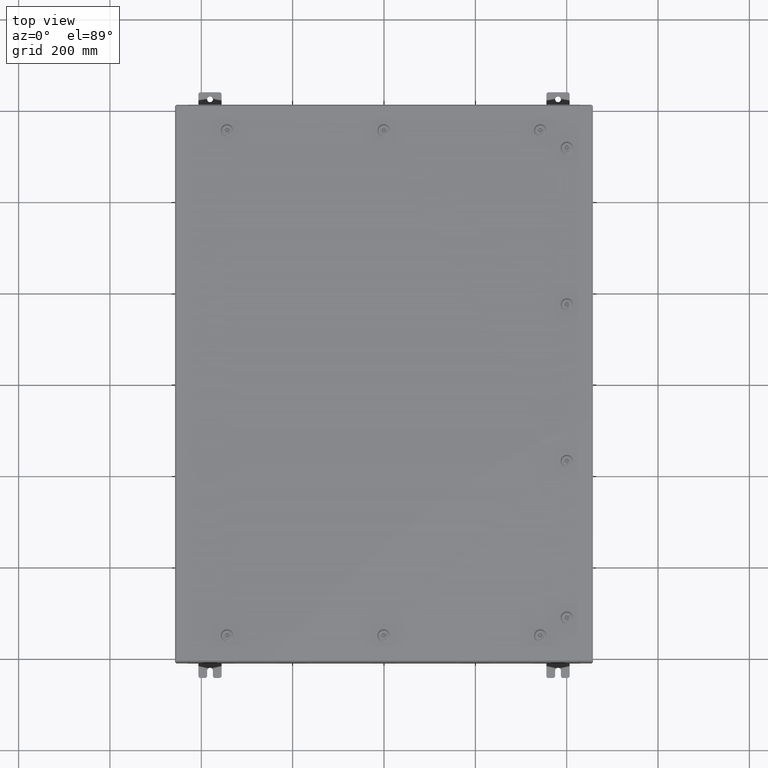
[diagram: clean part render]
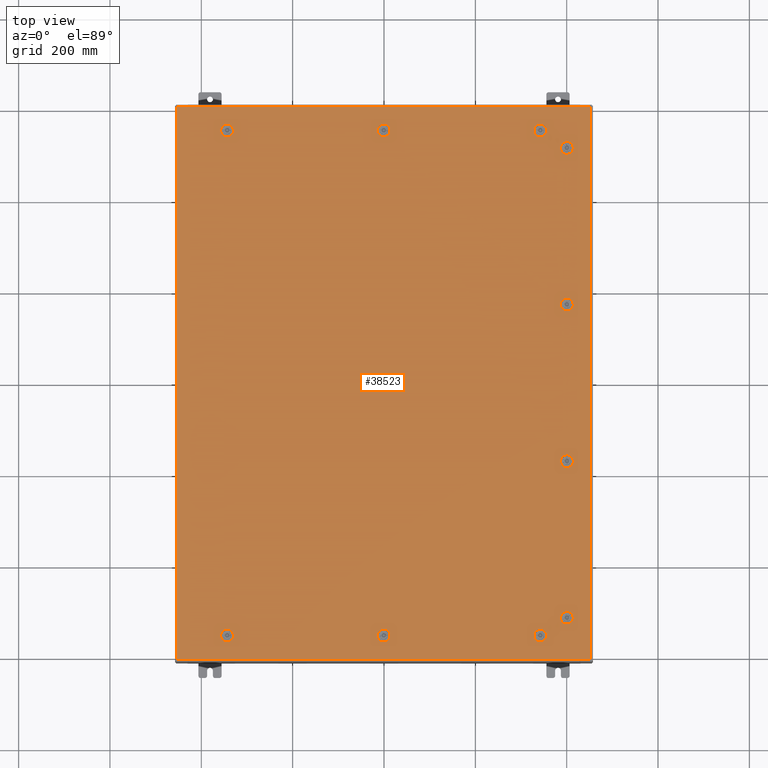
[diagram: same view with one face highlighted and labeled with its STEP entity id]
A machine part, top view. The second image highlights one B-rep face of the part: STEP entity #38523.
In plain terms, the highlighted planar face has unit normal (0, 0, -1).
Its self-contained STEP definition (entity closure, byte-faithful):
#11 = CIRCLE ( 'NONE', #58830, 0.4424999999999983400 ) ;
#49 = VERTEX_POINT ( 'NONE', #47162 ) ;
#89 = PLANE ( 'NONE',  #27670 ) ;
#187 = ORIENTED_EDGE ( 'NONE', *, *, #14900, .F. ) ;
#302 = CARTESIAN_POINT ( 'NONE',  ( -13.49999999999998600, 21.78780000000000400, 0.0000000000000000000 ) ) ;
#665 = DIRECTION ( 'NONE',  ( 0.0000000000000000000, 1.000000000000000000, 6.982962677686235200E-015 ) ) ;
#861 = CARTESIAN_POINT ( 'NONE',  ( 15.78780000000000800, -6.750000000000014200, -4.713499807438240100E-014 ) ) ;
#1033 = EDGE_CURVE ( 'NONE', #21482, #36262, #64863, .T. ) ;
#1095 = CARTESIAN_POINT ( 'NONE',  ( 13.30054762473210200, 21.39280000000001200, -9.287722765629301200E-014 ) ) ;
#1135 = CARTESIAN_POINT ( 'NONE',  ( 0.1994523752678995500, 21.39280000000001200, 0.0000000000000000000 ) ) ;
#1137 = VERTEX_POINT ( 'NONE', #1135 ) ;
#1224 = DIRECTION ( 'NONE',  ( 5.478697338139280000E-015, 1.000000000000000000, 6.982962677686382700E-015 ) ) ;
#1502 = CIRCLE ( 'NONE', #64398, 0.4424999999999983400 ) ;
#1539 = CARTESIAN_POINT ( 'NONE',  ( 13.49999999999998600, -21.78780000000000400, -1.578617423656501800E-013 ) ) ;
#1879 = DIRECTION ( 'NONE',  ( 1.000000000000000000, 0.0000000000000000000, 6.982962677686270700E-015 ) ) ;
#1955 = EDGE_CURVE ( 'NONE', #61809, #66351, #43257, .T. ) ;
#2132 = CARTESIAN_POINT ( 'NONE',  ( 13.30054762473210400, -21.39280000000001200, -1.564962406004356200E-013 ) ) ;
#2148 = CARTESIAN_POINT ( 'NONE',  ( -0.1994523752678689600, -21.39280000000001200, -2.493734682567286400E-013 ) ) ;
#2157 = CARTESIAN_POINT ( 'NONE',  ( 15.78780000000000800, -6.750000000000014200, -4.713499807438240100E-014 ) ) ;
#2193 = AXIS2_PLACEMENT_3D ( 'NONE', #45282, #13455, #50586 ) ;
#2249 = EDGE_CURVE ( 'NONE', #9610, #49, #53988, .T. ) ;
#2329 = AXIS2_PLACEMENT_3D ( 'NONE', #8995, #46147, #14343 ) ;
#2722 = FACE_BOUND ( 'NONE', #63793, .T. ) ;
#2828 = LINE ( 'NONE', #53700, #57630 ) ;
#3023 = EDGE_CURVE ( 'NONE', #37370, #46178, #58907, .T. ) ;
#3158 = ORIENTED_EDGE ( 'NONE', *, *, #11163, .F. ) ;
#3176 = DIRECTION ( 'NONE',  ( -0.0000000000000000000, -6.982962677686266700E-015, 1.000000000000000000 ) ) ;
#3534 = DIRECTION ( 'NONE',  ( -1.000000000000000000, -0.0000000000000000000, -6.982962677686265900E-015 ) ) ;
#3633 = LINE ( 'NONE', #44708, #5295 ) ;
#3727 = DIRECTION ( 'NONE',  ( 1.000000000000000000, 0.0000000000000000000, 0.0000000000000000000 ) ) ;
#3857 = EDGE_LOOP ( 'NONE', ( #64049, #27577, #66036, #4003, #57104 ) ) ;
#3958 = CARTESIAN_POINT ( 'NONE',  ( 15.78780000000001000, 6.750000000000014200, 0.0000000000000000000 ) ) ;
#4003 = ORIENTED_EDGE ( 'NONE', *, *, #33850, .F. ) ;
#4222 = EDGE_CURVE ( 'NONE', #45444, #48048, #1502, .T. ) ;
#4319 = ORIENTED_EDGE ( 'NONE', *, *, #20498, .F. ) ;
#4787 = CIRCLE ( 'NONE', #5316, 0.4424999999999983400 ) ;
#5191 = VECTOR ( 'NONE', #53969, 39.37007874015748100 ) ;
#5295 = VECTOR ( 'NONE', #12855, 39.37007874015748100 ) ;
#5316 = AXIS2_PLACEMENT_3D ( 'NONE', #35057, #3176, #40367 ) ;
#5519 = EDGE_CURVE ( 'NONE', #17537, #9610, #6514, .T. ) ;
#5606 = CARTESIAN_POINT ( 'NONE',  ( 1.529834876451987200E-014, -21.78780000000000400, -2.521317385144146900E-013 ) ) ;
#5649 = DIRECTION ( 'NONE',  ( 1.000000000000000000, 0.0000000000000000000, 0.0000000000000000000 ) ) ;
#5767 = EDGE_CURVE ( 'NONE', #16783, #37744, #40616, .T. ) ;
#5846 = EDGE_CURVE ( 'NONE', #19422, #50183, #54657, .T. ) ;
#5855 = CARTESIAN_POINT ( 'NONE',  ( -13.30054762473209500, -22.18280000000000400, -2.548900087721007400E-013 ) ) ;
#6047 = AXIS2_PLACEMENT_3D ( 'NONE', #48284, #16501, #53594 ) ;
#6206 = DIRECTION ( 'NONE',  ( 0.0000000000000000000, 1.000000000000000000, 6.982962677686269100E-015 ) ) ;
#6271 = VERTEX_POINT ( 'NONE', #24868 ) ;
#6487 = CARTESIAN_POINT ( 'NONE',  ( -13.49999999999998600, -21.78780000000000800, -2.521317385144146900E-013 ) ) ;
#6489 = CARTESIAN_POINT ( 'NONE',  ( -13.69945237526786900, -22.18280000000000700, 0.0000000000000000000 ) ) ;
#6514 = CIRCLE ( 'NONE', #60431, 0.4424999999999961700 ) ;
#6715 = EDGE_CURVE ( 'NONE', #6271, #61809, #4787, .T. ) ;
#6805 = CARTESIAN_POINT ( 'NONE',  ( 15.39280000000002800, -20.44945237526790300, -1.427977627156185600E-013 ) ) ;
#6883 = DIRECTION ( 'NONE',  ( 1.000000000000000000, 0.0000000000000000000, 6.982962677686270700E-015 ) ) ;
#6937 = CARTESIAN_POINT ( 'NONE',  ( -13.30054762473210400, -21.39280000000001500, -2.493734682567286900E-013 ) ) ;
#7275 = LINE ( 'NONE', #38708, #47986 ) ;
#7516 = DIRECTION ( 'NONE',  ( 0.0000000000000000000, 1.000000000000000000, 6.982962677686252500E-015 ) ) ;
#7695 = CIRCLE ( 'NONE', #43469, 0.4424999999999983400 ) ;
#7986 = ORIENTED_EDGE ( 'NONE', *, *, #49382, .F. ) ;
#8154 = LINE ( 'NONE', #33094, #66318 ) ;
#8384 = EDGE_CURVE ( 'NONE', #51489, #62645, #9665, .T. ) ;
#8458 = CARTESIAN_POINT ( 'NONE',  ( 15.39280000000001500, -6.949452375267905600, -4.852776656685395900E-014 ) ) ;
#8495 = CARTESIAN_POINT ( 'NONE',  ( 1.529834876451987200E-014, 21.78780000000000400, 0.0000000000000000000 ) ) ;
#8995 = CARTESIAN_POINT ( 'NONE',  ( 1.529834876451987200E-014, -21.78780000000000400, -2.521317385144146900E-013 ) ) ;
#9168 = DIRECTION ( 'NONE',  ( 0.0000000000000000000, 0.0000000000000000000, 1.000000000000000000 ) ) ;
#9311 = DIRECTION ( 'NONE',  ( 1.000000000000000000, 0.0000000000000000000, 0.0000000000000000000 ) ) ;
#9508 = EDGE_CURVE ( 'NONE', #24290, #29080, #29582, .T. ) ;
#9610 = VERTEX_POINT ( 'NONE', #48239 ) ;
#9662 = VERTEX_POINT ( 'NONE', #1095 ) ;
#9665 = CIRCLE ( 'NONE', #53409, 0.4424999999999983400 ) ;
#9972 = EDGE_CURVE ( 'NONE', #23363, #16398, #37809, .T. ) ;
#10141 = LINE ( 'NONE', #5855, #50852 ) ;
#10266 = ORIENTED_EDGE ( 'NONE', *, *, #60173, .F. ) ;
#10553 = VERTEX_POINT ( 'NONE', #2148 ) ;
#10813 = VERTEX_POINT ( 'NONE', #26728 ) ;
#10954 = DIRECTION ( 'NONE',  ( 0.0000000000000000000, 1.000000000000000000, 6.982962677686270700E-015 ) ) ;
#11132 = CARTESIAN_POINT ( 'NONE',  ( 17.84980000000000200, 23.84980000000000900, 1.946441695485787500E-015 ) ) ;
#11153 = CIRCLE ( 'NONE', #2193, 0.4424999999999969000 ) ;
#11163 = EDGE_CURVE ( 'NONE', #36262, #19422, #13627, .T. ) ;
#11190 = VECTOR ( 'NONE', #14775, 39.37007874015748100 ) ;
#11326 = CARTESIAN_POINT ( 'NONE',  ( 13.30054762473209500, -22.18280000000000000, -1.620127811158077400E-013 ) ) ;
#11440 = EDGE_CURVE ( 'NONE', #63132, #17537, #33580, .T. ) ;
#11628 = DIRECTION ( 'NONE',  ( 6.982962677686266700E-015, -0.0000000000000000000, 1.000000000000000000 ) ) ;
#11682 = CIRCLE ( 'NONE', #17510, 0.4424999999999972800 ) ;
#11776 = ORIENTED_EDGE ( 'NONE', *, *, #65234, .F. ) ;
#11790 = AXIS2_PLACEMENT_3D ( 'NONE', #65504, #33769, #1879 ) ;
#11811 = ORIENTED_EDGE ( 'NONE', *, *, #1033, .F. ) ;
#11844 = DIRECTION ( 'NONE',  ( 0.0000000000000000000, 1.000000000000000000, 6.982962677686270700E-015 ) ) ;
#12115 = CARTESIAN_POINT ( 'NONE',  ( 13.69945237526786700, 22.18280000000000400, 0.0000000000000000000 ) ) ;
#12214 = DIRECTION ( 'NONE',  ( 0.0000000000000000000, 0.0000000000000000000, 1.000000000000000000 ) ) ;
#12286 = CIRCLE ( 'NONE', #53165, 0.4424999999999983400 ) ;
#12309 = ORIENTED_EDGE ( 'NONE', *, *, #6715, .F. ) ;
#12497 = EDGE_CURVE ( 'NONE', #38422, #37370, #49239, .T. ) ;
#12723 = LINE ( 'NONE', #21384, #53395 ) ;
#12855 = DIRECTION ( 'NONE',  ( -1.095739467627835000E-014, -1.000000000000000000, 0.0000000000000000000 ) ) ;
#12998 = CARTESIAN_POINT ( 'NONE',  ( 16.18280000000001500, 20.05054762473213300, 0.0000000000000000000 ) ) ;
#13072 = CARTESIAN_POINT ( 'NONE',  ( -13.69945237526787100, -21.39280000000001500, -2.493734682567286400E-013 ) ) ;
#13323 = EDGE_CURVE ( 'NONE', #15007, #16783, #10141, .T. ) ;
#13455 = DIRECTION ( 'NONE',  ( 0.0000000000000000000, 0.0000000000000000000, 1.000000000000000000 ) ) ;
#13627 = CIRCLE ( 'NONE', #35805, 0.4424999999999961700 ) ;
#13844 = DIRECTION ( 'NONE',  ( 1.000000000000000000, 0.0000000000000000000, 0.0000000000000000000 ) ) ;
#14279 = CARTESIAN_POINT ( 'NONE',  ( 0.4425000000000125500, 21.78780000000000400, 0.0000000000000000000 ) ) ;
#14343 = DIRECTION ( 'NONE',  ( 0.0000000000000000000, 1.000000000000000000, 6.982962677686270700E-015 ) ) ;
#14775 = DIRECTION ( 'NONE',  ( 0.0000000000000000000, 1.000000000000000000, 0.0000000000000000000 ) ) ;
#14846 = DIRECTION ( 'NONE',  ( -5.478697338139280000E-015, 1.000000000000000000, -0.0000000000000000000 ) ) ;
#14900 = EDGE_CURVE ( 'NONE', #34912, #41331, #12723, .T. ) ;
#14950 = DIRECTION ( 'NONE',  ( 1.000000000000000000, 1.095739467627836100E-014, 7.785697190085984100E-029 ) ) ;
#14988 = VECTOR ( 'NONE', #49296, 39.37007874015748100 ) ;
#15007 = VERTEX_POINT ( 'NONE', #6489 ) ;
#15577 = VERTEX_POINT ( 'NONE', #19270 ) ;
#15767 = VECTOR ( 'NONE', #44531, 39.37007874015748100 ) ;
#15981 = CARTESIAN_POINT ( 'NONE',  ( -13.69945237526786700, 22.18280000000000400, 0.0000000000000000000 ) ) ;
#16128 = VERTEX_POINT ( 'NONE', #18898 ) ;
#16144 = DIRECTION ( 'NONE',  ( -1.000000000000000000, 0.0000000000000000000, -0.0000000000000000000 ) ) ;
#16398 = VERTEX_POINT ( 'NONE', #11132 ) ;
#16415 = CIRCLE ( 'NONE', #25130, 0.4424999999999983400 ) ;
#16463 = AXIS2_PLACEMENT_3D ( 'NONE', #51147, #19403, #56487 ) ;
#16484 = CARTESIAN_POINT ( 'NONE',  ( 0.4425000000000125500, -21.78780000000000400, -2.521317385144146900E-013 ) ) ;
#16492 = CARTESIAN_POINT ( 'NONE',  ( 16.18280000000000700, -6.550547624732131700, -4.574222958191090100E-014 ) ) ;
#16501 = DIRECTION ( 'NONE',  ( 6.982962677686266700E-015, -0.0000000000000000000, 1.000000000000000000 ) ) ;
#16607 = DIRECTION ( 'NONE',  ( -1.000000000000000000, 0.0000000000000000000, 7.785697190086061500E-029 ) ) ;
#16783 = VERTEX_POINT ( 'NONE', #23671 ) ;
#16858 = FACE_BOUND ( 'NONE', #52599, .T. ) ;
#17157 = ORIENTED_EDGE ( 'NONE', *, *, #50994, .F. ) ;
#17172 = ORIENTED_EDGE ( 'NONE', *, *, #65630, .F. ) ;
#17251 = CARTESIAN_POINT ( 'NONE',  ( 16.18280000000000400, -6.949452375267900300, -4.852776656685392100E-014 ) ) ;
#17371 = CARTESIAN_POINT ( 'NONE',  ( -17.84979999999999800, -23.84980000000000200, 1.946441695485787500E-015 ) ) ;
#17510 = AXIS2_PLACEMENT_3D ( 'NONE', #28673, #65778, #34047 ) ;
#17514 = CARTESIAN_POINT ( 'NONE',  ( -13.05749999999998900, 21.78780000000000400, 0.0000000000000000000 ) ) ;
#17537 = VERTEX_POINT ( 'NONE', #15981 ) ;
#18254 = ORIENTED_EDGE ( 'NONE', *, *, #37423, .F. ) ;
#18568 = FACE_BOUND ( 'NONE', #36448, .T. ) ;
#18870 = VERTEX_POINT ( 'NONE', #14279 ) ;
#18898 = CARTESIAN_POINT ( 'NONE',  ( 16.18280000000001100, 20.44945237526789600, 0.0000000000000000000 ) ) ;
#19160 = DIRECTION ( 'NONE',  ( 0.0000000000000000000, 0.0000000000000000000, 1.000000000000000000 ) ) ;
#19270 = CARTESIAN_POINT ( 'NONE',  ( 13.69945237526786900, -22.18280000000000400, -1.592272441308647100E-013 ) ) ;
#19403 = DIRECTION ( 'NONE',  ( 0.0000000000000000000, 0.0000000000000000000, 1.000000000000000000 ) ) ;
#19422 = VERTEX_POINT ( 'NONE', #12115 ) ;
#19477 = LINE ( 'NONE', #67160, #60083 ) ;
#19954 = ORIENTED_EDGE ( 'NONE', *, *, #60594, .F. ) ;
#20067 = ORIENTED_EDGE ( 'NONE', *, *, #28239, .F. ) ;
#20270 = EDGE_CURVE ( 'NONE', #56239, #52660, #49844, .T. ) ;
#20498 = EDGE_CURVE ( 'NONE', #29080, #15577, #43215, .T. ) ;
#20509 = ORIENTED_EDGE ( 'NONE', *, *, #5767, .F. ) ;
#20600 = ORIENTED_EDGE ( 'NONE', *, *, #34827, .T. ) ;
#20719 = CARTESIAN_POINT ( 'NONE',  ( -13.49999999999998600, -21.78780000000000800, -2.521317385144146900E-013 ) ) ;
#21116 = DIRECTION ( 'NONE',  ( -6.982962677686266700E-015, -6.982962677686266700E-015, 1.000000000000000000 ) ) ;
#21132 = CARTESIAN_POINT ( 'NONE',  ( -0.1994523752678657400, 22.18280000000000400, 0.0000000000000000000 ) ) ;
#21260 = CARTESIAN_POINT ( 'NONE',  ( 0.0000000000000000000, 0.0000000000000000000, 0.0000000000000000000 ) ) ;
#21384 = CARTESIAN_POINT ( 'NONE',  ( 15.39280000000002200, 20.44945237526790300, 0.0000000000000000000 ) ) ;
#21457 = ORIENTED_EDGE ( 'NONE', *, *, #2249, .F. ) ;
#21482 = VERTEX_POINT ( 'NONE', #57507 ) ;
#21636 = CARTESIAN_POINT ( 'NONE',  ( -13.30054762473210200, 21.39280000000001200, 0.0000000000000000000 ) ) ;
#21667 = CIRCLE ( 'NONE', #62347, 0.4424999999999983400 ) ;
#21735 = CARTESIAN_POINT ( 'NONE',  ( 16.18280000000001500, -20.44945237526789600, -1.427977627156185100E-013 ) ) ;
#22238 = CARTESIAN_POINT ( 'NONE',  ( 13.94249999999998500, -21.78780000000000400, -1.547717813807740000E-013 ) ) ;
#22577 = ORIENTED_EDGE ( 'NONE', *, *, #61264, .F. ) ;
#23101 = CIRCLE ( 'NONE', #37645, 0.4424999999999983400 ) ;
#23363 = VERTEX_POINT ( 'NONE', #42528 ) ;
#23422 = EDGE_CURVE ( 'NONE', #66351, #44520, #16415, .T. ) ;
#23517 = DIRECTION ( 'NONE',  ( -1.000000000000000000, -0.0000000000000000000, -0.0000000000000000000 ) ) ;
#23671 = CARTESIAN_POINT ( 'NONE',  ( -13.30054762473209500, -22.18280000000000400, -2.548900087721007400E-013 ) ) ;
#23716 = VERTEX_POINT ( 'NONE', #66125 ) ;
#23739 = CARTESIAN_POINT ( 'NONE',  ( 16.18280000000000700, 6.949452375267900300, 0.0000000000000000000 ) ) ;
#24221 = VERTEX_POINT ( 'NONE', #17514 ) ;
#24290 = VERTEX_POINT ( 'NONE', #2132 ) ;
#24538 = VECTOR ( 'NONE', #44014, 39.37007874015748100 ) ;
#24642 = DIRECTION ( 'NONE',  ( 6.982962677686266700E-015, -0.0000000000000000000, 1.000000000000000000 ) ) ;
#24868 = CARTESIAN_POINT ( 'NONE',  ( 16.18280000000001800, -20.05054762473213300, -1.400122257306754800E-013 ) ) ;
#24923 = ORIENTED_EDGE ( 'NONE', *, *, #28440, .F. ) ;
#25130 = AXIS2_PLACEMENT_3D ( 'NONE', #64273, #32529, #665 ) ;
#25705 = CARTESIAN_POINT ( 'NONE',  ( 15.39280000000001200, -6.550547624732131700, 0.0000000000000000000 ) ) ;
#25777 = VECTOR ( 'NONE', #58882, 39.37007874015748100 ) ;
#26059 = DIRECTION ( 'NONE',  ( 0.0000000000000000000, 1.000000000000000000, 6.982962677686270700E-015 ) ) ;
#26073 = CARTESIAN_POINT ( 'NONE',  ( -13.49999999999998600, -21.78780000000000800, -2.521317385144146900E-013 ) ) ;
#26281 = VERTEX_POINT ( 'NONE', #21132 ) ;
#26419 = CARTESIAN_POINT ( 'NONE',  ( 1.529834876451987200E-014, -21.78780000000000400, -2.521317385144146900E-013 ) ) ;
#26502 = CARTESIAN_POINT ( 'NONE',  ( 13.30054762473209400, 22.18280000000000000, -9.287722765629296100E-014 ) ) ;
#26724 = DIRECTION ( 'NONE',  ( -1.095739467627844000E-014, -1.000000000000000000, 0.0000000000000000000 ) ) ;
#26728 = CARTESIAN_POINT ( 'NONE',  ( -17.84979999999999800, -23.84980000000000200, 1.946441695485787500E-015 ) ) ;
#26747 = DIRECTION ( 'NONE',  ( -1.000000000000000000, 1.095739467627836100E-014, 0.0000000000000000000 ) ) ;
#27577 = ORIENTED_EDGE ( 'NONE', *, *, #64905, .F. ) ;
#27651 = ORIENTED_EDGE ( 'NONE', *, *, #43085, .F. ) ;
#27670 = AXIS2_PLACEMENT_3D ( 'NONE', #21260, #47923, #16144 ) ;
#27822 = EDGE_CURVE ( 'NONE', #1137, #18870, #11682, .T. ) ;
#28239 = EDGE_CURVE ( 'NONE', #37744, #56239, #44095, .T. ) ;
#28440 = EDGE_CURVE ( 'NONE', #50183, #9662, #11, .T. ) ;
#28673 = CARTESIAN_POINT ( 'NONE',  ( 1.529834876451987200E-014, 21.78780000000000400, 0.0000000000000000000 ) ) ;
#28904 = AXIS2_PLACEMENT_3D ( 'NONE', #67362, #35613, #3727 ) ;
#29080 = VERTEX_POINT ( 'NONE', #58740 ) ;
#29252 = AXIS2_PLACEMENT_3D ( 'NONE', #44056, #12214, #49359 ) ;
#29283 = VECTOR ( 'NONE', #14846, 39.37007874015748100 ) ;
#29294 = EDGE_CURVE ( 'NONE', #39773, #1137, #44031, .T. ) ;
#29369 = FACE_OUTER_BOUND ( 'NONE', #45078, .T. ) ;
#29426 = CARTESIAN_POINT ( 'NONE',  ( 15.39280000000001900, 20.05054762473213300, 0.0000000000000000000 ) ) ;
#29567 = CIRCLE ( 'NONE', #28904, 0.4424999999999983400 ) ;
#29582 = CIRCLE ( 'NONE', #49464, 0.4424999999999961700 ) ;
#29767 = EDGE_LOOP ( 'NONE', ( #37177, #64351, #64574, #32699 ) ) ;
#30427 = CARTESIAN_POINT ( 'NONE',  ( -13.30054762473210400, -21.39280000000001500, -2.493734682567286900E-013 ) ) ;
#30485 = DIRECTION ( 'NONE',  ( 5.478697338139235000E-015, 1.000000000000000000, 6.982962677686265900E-015 ) ) ;
#30718 = AXIS2_PLACEMENT_3D ( 'NONE', #20719, #57816, #26059 ) ;
#31017 = FACE_BOUND ( 'NONE', #35945, .T. ) ;
#31320 = EDGE_CURVE ( 'NONE', #61201, #46512, #23101, .T. ) ;
#31426 = DIRECTION ( 'NONE',  ( 0.0000000000000000000, 1.000000000000000000, 6.982962677686270700E-015 ) ) ;
#31441 = VERTEX_POINT ( 'NONE', #16492 ) ;
#31779 = DIRECTION ( 'NONE',  ( 0.0000000000000000000, 1.000000000000000000, 6.982962677686270700E-015 ) ) ;
#31867 = ORIENTED_EDGE ( 'NONE', *, *, #48173, .F. ) ;
#31878 = CARTESIAN_POINT ( 'NONE',  ( -13.05749999999999000, -21.78780000000000800, -2.521317385144146900E-013 ) ) ;
#31880 = VECTOR ( 'NONE', #52392, 39.37007874015748100 ) ;
#32167 = ORIENTED_EDGE ( 'NONE', *, *, #23422, .F. ) ;
#32433 = VECTOR ( 'NONE', #36021, 39.37007874015748100 ) ;
#32503 = CIRCLE ( 'NONE', #2329, 0.4424999999999983400 ) ;
#32529 = DIRECTION ( 'NONE',  ( -0.0000000000000000000, -6.982962677686266700E-015, 1.000000000000000000 ) ) ;
#32699 = ORIENTED_EDGE ( 'NONE', *, *, #36002, .F. ) ;
#33094 = CARTESIAN_POINT ( 'NONE',  ( 16.18280000000001500, -20.44945237526789600, -1.427977627156185100E-013 ) ) ;
#33179 = EDGE_CURVE ( 'NONE', #10553, #47539, #46219, .T. ) ;
#33276 = DIRECTION ( 'NONE',  ( 1.000000000000000000, 0.0000000000000000000, -6.982962677686306200E-015 ) ) ;
#33511 = CARTESIAN_POINT ( 'NONE',  ( 13.30054762473209400, 22.18280000000000000, -9.287722765629296100E-014 ) ) ;
#33580 = LINE ( 'NONE', #47305, #31880 ) ;
#33769 = DIRECTION ( 'NONE',  ( -6.982962677686266700E-015, -6.982962677686266700E-015, 1.000000000000000000 ) ) ;
#33850 = EDGE_CURVE ( 'NONE', #18870, #23716, #66932, .T. ) ;
#33984 = EDGE_CURVE ( 'NONE', #41331, #64535, #65231, .T. ) ;
#34047 = DIRECTION ( 'NONE',  ( 1.000000000000000000, 0.0000000000000000000, 0.0000000000000000000 ) ) ;
#34360 = FACE_BOUND ( 'NONE', #39427, .T. ) ;
#34611 = ORIENTED_EDGE ( 'NONE', *, *, #41505, .F. ) ;
#34827 = EDGE_CURVE ( 'NONE', #36292, #10813, #38642, .T. ) ;
#34866 = ORIENTED_EDGE ( 'NONE', *, *, #5846, .F. ) ;
#34912 = VERTEX_POINT ( 'NONE', #44464 ) ;
#34974 = VECTOR ( 'NONE', #58732, 39.37007874015748100 ) ;
#35057 = CARTESIAN_POINT ( 'NONE',  ( 15.78780000000001800, -20.25000000000001400, -1.414049942231469700E-013 ) ) ;
#35613 = DIRECTION ( 'NONE',  ( 0.0000000000000000000, 0.0000000000000000000, 1.000000000000000000 ) ) ;
#35805 = AXIS2_PLACEMENT_3D ( 'NONE', #56401, #24642, #61743 ) ;
#35945 = EDGE_LOOP ( 'NONE', ( #46169, #19954, #38407, #20067, #20509 ) ) ;
#36002 = EDGE_CURVE ( 'NONE', #67481, #54044, #29567, .T. ) ;
#36021 = DIRECTION ( 'NONE',  ( -1.000000000000000000, 0.0000000000000000000, 7.785697190086082800E-029 ) ) ;
#36160 = EDGE_CURVE ( 'NONE', #10813, #23363, #36993, .T. ) ;
#36262 = VERTEX_POINT ( 'NONE', #65614 ) ;
#36292 = VERTEX_POINT ( 'NONE', #60482 ) ;
#36448 = EDGE_LOOP ( 'NONE', ( #44537, #31867, #49232, #67838 ) ) ;
#36993 = LINE ( 'NONE', #17371, #51079 ) ;
#37177 = ORIENTED_EDGE ( 'NONE', *, *, #42266, .F. ) ;
#37209 = EDGE_CURVE ( 'NONE', #54044, #61201, #3633, .T. ) ;
#37370 = VERTEX_POINT ( 'NONE', #8458 ) ;
#37423 = EDGE_CURVE ( 'NONE', #24221, #63132, #65936, .T. ) ;
#37509 = DIRECTION ( 'NONE',  ( 0.0000000000000000000, 0.0000000000000000000, 1.000000000000000000 ) ) ;
#37549 = AXIS2_PLACEMENT_3D ( 'NONE', #26073, #63178, #31426 ) ;
#37645 = AXIS2_PLACEMENT_3D ( 'NONE', #3958, #41152, #9311 ) ;
#37696 = DIRECTION ( 'NONE',  ( 1.000000000000000000, 1.095739467627832000E-014, 7.785697190085955000E-029 ) ) ;
#37744 = VERTEX_POINT ( 'NONE', #31878 ) ;
#37809 = LINE ( 'NONE', #46574, #11190 ) ;
#38005 = CARTESIAN_POINT ( 'NONE',  ( 15.39280000000001500, -6.949452375267904700, -4.852776656685395200E-014 ) ) ;
#38050 = DIRECTION ( 'NONE',  ( -0.0000000000000000000, -6.982962677686266700E-015, 1.000000000000000000 ) ) ;
#38141 = AXIS2_PLACEMENT_3D ( 'NONE', #26419, #63530, #31779 ) ;
#38407 = ORIENTED_EDGE ( 'NONE', *, *, #20270, .F. ) ;
#38422 = VERTEX_POINT ( 'NONE', #25705 ) ;
#38523 = ADVANCED_FACE ( 'NONE', ( #34360, #18568, #46748, #59167, #45124, #31017, #16858, #2722, #57523, #43455, #29369 ), #89, .F. ) ;
#38642 = LINE ( 'NONE', #54616, #24538 ) ;
#38690 = ORIENTED_EDGE ( 'NONE', *, *, #1955, .F. ) ;
#38708 = CARTESIAN_POINT ( 'NONE',  ( 16.18280000000000700, 6.949452375267900300, 0.0000000000000000000 ) ) ;
#38733 = DIRECTION ( 'NONE',  ( -6.982962677686266700E-015, -6.982962677686266700E-015, 1.000000000000000000 ) ) ;
#38832 = CIRCLE ( 'NONE', #11790, 0.4424999999999983400 ) ;
#38943 = VECTOR ( 'NONE', #63616, 39.37007874015748100 ) ;
#38963 = CARTESIAN_POINT ( 'NONE',  ( 13.69945237526787100, -21.39280000000001200, 0.0000000000000000000 ) ) ;
#39201 = CARTESIAN_POINT ( 'NONE',  ( 0.1994523752678995500, 21.39280000000001200, 0.0000000000000000000 ) ) ;
#39359 = DIRECTION ( 'NONE',  ( -0.0000000000000000000, -6.982962677686266700E-015, 1.000000000000000000 ) ) ;
#39427 = EDGE_LOOP ( 'NONE', ( #38690, #12309, #10266, #32167 ) ) ;
#39733 = CARTESIAN_POINT ( 'NONE',  ( -13.30054762473209400, 22.18280000000000000, 0.0000000000000000000 ) ) ;
#39766 = EDGE_CURVE ( 'NONE', #23716, #26281, #59896, .T. ) ;
#39773 = VERTEX_POINT ( 'NONE', #42781 ) ;
#40367 = DIRECTION ( 'NONE',  ( 0.0000000000000000000, 1.000000000000000000, 6.982962677686235200E-015 ) ) ;
#40404 = AXIS2_PLACEMENT_3D ( 'NONE', #8495, #45669, #13844 ) ;
#40616 = CIRCLE ( 'NONE', #30718, 0.4424999999999983400 ) ;
#41008 = CARTESIAN_POINT ( 'NONE',  ( 15.78780000000001500, 20.25000000000001400, 0.0000000000000000000 ) ) ;
#41152 = DIRECTION ( 'NONE',  ( 0.0000000000000000000, 0.0000000000000000000, 1.000000000000000000 ) ) ;
#41331 = VERTEX_POINT ( 'NONE', #29426 ) ;
#41505 = EDGE_CURVE ( 'NONE', #47539, #59546, #44766, .T. ) ;
#41929 = ORIENTED_EDGE ( 'NONE', *, *, #33179, .F. ) ;
#42266 = EDGE_CURVE ( 'NONE', #46512, #67481, #7275, .T. ) ;
#42528 = CARTESIAN_POINT ( 'NONE',  ( 17.84980000000000200, -23.84980000000000200, -2.048885995248197400E-016 ) ) ;
#42781 = CARTESIAN_POINT ( 'NONE',  ( -0.1994523752678689600, 21.39280000000001200, 0.0000000000000000000 ) ) ;
#42794 = DIRECTION ( 'NONE',  ( -0.0000000000000000000, -6.982962677686266700E-015, 1.000000000000000000 ) ) ;
#42884 = EDGE_LOOP ( 'NONE', ( #21457, #65250, #66888, #18254, #67604 ) ) ;
#43085 = EDGE_CURVE ( 'NONE', #15577, #51489, #38832, .T. ) ;
#43131 = EDGE_CURVE ( 'NONE', #16398, #36292, #49592, .T. ) ;
#43215 = LINE ( 'NONE', #11326, #25777 ) ;
#43257 = LINE ( 'NONE', #6805, #14988 ) ;
#43424 = EDGE_CURVE ( 'NONE', #46178, #31441, #67841, .T. ) ;
#43455 = FACE_BOUND ( 'NONE', #3857, .T. ) ;
#43467 = CARTESIAN_POINT ( 'NONE',  ( 13.49999999999998600, 21.78780000000000400, -9.426999614876453700E-014 ) ) ;
#43469 = AXIS2_PLACEMENT_3D ( 'NONE', #2157, #39359, #7516 ) ;
#43498 = AXIS2_PLACEMENT_3D ( 'NONE', #861, #38050, #6206 ) ;
#43676 = DIRECTION ( 'NONE',  ( -0.0000000000000000000, -6.982962677686266700E-015, 1.000000000000000000 ) ) ;
#44008 = CARTESIAN_POINT ( 'NONE',  ( 0.1994523752678995500, -21.39280000000001200, -2.493734682567286900E-013 ) ) ;
#44014 = DIRECTION ( 'NONE',  ( 0.0000000000000000000, -1.000000000000000000, 0.0000000000000000000 ) ) ;
#44031 = LINE ( 'NONE', #39201, #15767 ) ;
#44056 = CARTESIAN_POINT ( 'NONE',  ( 15.78780000000001500, 20.25000000000001400, 0.0000000000000000000 ) ) ;
#44095 = CIRCLE ( 'NONE', #37549, 0.4424999999999983400 ) ;
#44239 = ORIENTED_EDGE ( 'NONE', *, *, #4222, .F. ) ;
#44464 = CARTESIAN_POINT ( 'NONE',  ( 15.39280000000002200, 20.44945237526790300, 0.0000000000000000000 ) ) ;
#44520 = VERTEX_POINT ( 'NONE', #21735 ) ;
#44531 = DIRECTION ( 'NONE',  ( 1.000000000000000000, -0.0000000000000000000, -0.0000000000000000000 ) ) ;
#44537 = ORIENTED_EDGE ( 'NONE', *, *, #12497, .F. ) ;
#44708 = CARTESIAN_POINT ( 'NONE',  ( 15.39280000000001900, 6.949452375267904700, 0.0000000000000000000 ) ) ;
#44766 = LINE ( 'NONE', #67863, #57178 ) ;
#45078 = EDGE_LOOP ( 'NONE', ( #50219, #67754, #63041, #20600 ) ) ;
#45124 = FACE_BOUND ( 'NONE', #50158, .T. ) ;
#45282 = CARTESIAN_POINT ( 'NONE',  ( 1.529834876451987200E-014, 21.78780000000000400, 0.0000000000000000000 ) ) ;
#45444 = VERTEX_POINT ( 'NONE', #16484 ) ;
#45669 = DIRECTION ( 'NONE',  ( 0.0000000000000000000, 0.0000000000000000000, 1.000000000000000000 ) ) ;
#45853 = VECTOR ( 'NONE', #26747, 39.37007874015748100 ) ;
#46147 = DIRECTION ( 'NONE',  ( -0.0000000000000000000, -6.982962677686266700E-015, 1.000000000000000000 ) ) ;
#46169 = ORIENTED_EDGE ( 'NONE', *, *, #13323, .F. ) ;
#46178 = VERTEX_POINT ( 'NONE', #17251 ) ;
#46219 = CIRCLE ( 'NONE', #38141, 0.4424999999999983400 ) ;
#46318 = DIRECTION ( 'NONE',  ( 1.000000000000000000, 0.0000000000000000000, 0.0000000000000000000 ) ) ;
#46512 = VERTEX_POINT ( 'NONE', #51309 ) ;
#46548 = VECTOR ( 'NONE', #33276, 39.37007874015748100 ) ;
#46574 = CARTESIAN_POINT ( 'NONE',  ( 17.84980000000000200, -23.84980000000000200, -2.048885995248197400E-016 ) ) ;
#46748 = FACE_BOUND ( 'NONE', #67730, .T. ) ;
#47162 = CARTESIAN_POINT ( 'NONE',  ( -13.30054762473210200, 21.39280000000001200, 0.0000000000000000000 ) ) ;
#47305 = CARTESIAN_POINT ( 'NONE',  ( -13.30054762473209400, 22.18280000000000000, 0.0000000000000000000 ) ) ;
#47539 = VERTEX_POINT ( 'NONE', #60532 ) ;
#47915 = VECTOR ( 'NONE', #23517, 39.37007874015748100 ) ;
#47923 = DIRECTION ( 'NONE',  ( 0.0000000000000000000, 0.0000000000000000000, -1.000000000000000000 ) ) ;
#47986 = VECTOR ( 'NONE', #65351, 39.37007874015748100 ) ;
#48048 = VERTEX_POINT ( 'NONE', #44008 ) ;
#48173 = EDGE_CURVE ( 'NONE', #31441, #38422, #7695, .T. ) ;
#48222 = DIRECTION ( 'NONE',  ( 1.000000000000000000, -0.0000000000000000000, -0.0000000000000000000 ) ) ;
#48239 = CARTESIAN_POINT ( 'NONE',  ( -13.69945237526786900, 21.39280000000001200, 0.0000000000000000000 ) ) ;
#48284 = CARTESIAN_POINT ( 'NONE',  ( 13.49999999999998600, 21.78780000000000400, -9.426999614876453700E-014 ) ) ;
#48764 = DIRECTION ( 'NONE',  ( -1.000000000000000000, 0.0000000000000000000, 6.982962677686270700E-015 ) ) ;
#49232 = ORIENTED_EDGE ( 'NONE', *, *, #43424, .F. ) ;
#49239 = LINE ( 'NONE', #38005, #5191 ) ;
#49296 = DIRECTION ( 'NONE',  ( 1.095739467627844000E-014, -1.000000000000000000, -6.982962677686384300E-015 ) ) ;
#49359 = DIRECTION ( 'NONE',  ( 1.000000000000000000, 0.0000000000000000000, 0.0000000000000000000 ) ) ;
#49382 = EDGE_CURVE ( 'NONE', #64535, #16128, #55789, .T. ) ;
#49464 = AXIS2_PLACEMENT_3D ( 'NONE', #52876, #21116, #58210 ) ;
#49592 = LINE ( 'NONE', #55275, #47915 ) ;
#49844 = LINE ( 'NONE', #30427, #32433 ) ;
#50158 = EDGE_LOOP ( 'NONE', ( #17172, #57032, #27651, #4319, #63631 ) ) ;
#50183 = VERTEX_POINT ( 'NONE', #33511 ) ;
#50219 = ORIENTED_EDGE ( 'NONE', *, *, #36160, .T. ) ;
#50455 = CIRCLE ( 'NONE', #29252, 0.4424999999999961700 ) ;
#50586 = DIRECTION ( 'NONE',  ( 1.000000000000000000, 0.0000000000000000000, 0.0000000000000000000 ) ) ;
#50778 = CARTESIAN_POINT ( 'NONE',  ( 15.39280000000002800, -20.44945237526790300, -1.427977627156185100E-013 ) ) ;
#50852 = VECTOR ( 'NONE', #37696, 39.37007874015748100 ) ;
#50901 = CARTESIAN_POINT ( 'NONE',  ( -13.49999999999998600, 21.78780000000000400, 0.0000000000000000000 ) ) ;
#50994 = EDGE_CURVE ( 'NONE', #9662, #21482, #58962, .T. ) ;
#51035 = AXIS2_PLACEMENT_3D ( 'NONE', #41008, #9168, #46318 ) ;
#51079 = VECTOR ( 'NONE', #48222, 39.37007874015748100 ) ;
#51147 = CARTESIAN_POINT ( 'NONE',  ( -13.49999999999998600, 21.78780000000000400, 0.0000000000000000000 ) ) ;
#51309 = CARTESIAN_POINT ( 'NONE',  ( 16.18280000000000700, 6.550547624732131700, 0.0000000000000000000 ) ) ;
#51489 = VERTEX_POINT ( 'NONE', #22238 ) ;
#51547 = CARTESIAN_POINT ( 'NONE',  ( 16.18280000000000400, -6.949452375267900300, -4.852776656685392100E-014 ) ) ;
#51949 = CARTESIAN_POINT ( 'NONE',  ( 16.18280000000001100, 20.44945237526789600, 0.0000000000000000000 ) ) ;
#52392 = DIRECTION ( 'NONE',  ( -1.000000000000000000, 1.095739467627832000E-014, 0.0000000000000000000 ) ) ;
#52599 = EDGE_LOOP ( 'NONE', ( #34611, #41929, #11776, #44239, #54406 ) ) ;
#52660 = VERTEX_POINT ( 'NONE', #13072 ) ;
#52876 = CARTESIAN_POINT ( 'NONE',  ( 13.49999999999998600, -21.78780000000000400, -1.578617423656501800E-013 ) ) ;
#53165 = AXIS2_PLACEMENT_3D ( 'NONE', #6487, #43676, #11844 ) ;
#53395 = VECTOR ( 'NONE', #26724, 39.37007874015748100 ) ;
#53409 = AXIS2_PLACEMENT_3D ( 'NONE', #1539, #38733, #6883 ) ;
#53594 = DIRECTION ( 'NONE',  ( -1.000000000000000000, 0.0000000000000000000, 6.982962677686269100E-015 ) ) ;
#53700 = CARTESIAN_POINT ( 'NONE',  ( 0.1994523752678995500, -21.39280000000001200, -2.493734682567286900E-013 ) ) ;
#53738 = CARTESIAN_POINT ( 'NONE',  ( 0.1994523752679054600, -22.18280000000000000, -2.548900087721007400E-013 ) ) ;
#53969 = DIRECTION ( 'NONE',  ( 1.095739467627835000E-014, -1.000000000000000000, -6.982962677686269100E-015 ) ) ;
#53988 = LINE ( 'NONE', #21636, #34974 ) ;
#54044 = VERTEX_POINT ( 'NONE', #59082 ) ;
#54211 = CARTESIAN_POINT ( 'NONE',  ( 15.39280000000001400, 6.550547624732131700, 0.0000000000000000000 ) ) ;
#54406 = ORIENTED_EDGE ( 'NONE', *, *, #56905, .F. ) ;
#54616 = CARTESIAN_POINT ( 'NONE',  ( -17.84979999999998100, 23.84980000000000900, -1.297627796990525000E-015 ) ) ;
#54657 = LINE ( 'NONE', #26502, #38943 ) ;
#55275 = CARTESIAN_POINT ( 'NONE',  ( 17.84980000000000200, 23.84980000000000900, 1.946441695485787500E-015 ) ) ;
#55347 = EDGE_CURVE ( 'NONE', #49, #24221, #21667, .T. ) ;
#55789 = LINE ( 'NONE', #51949, #29283 ) ;
#56239 = VERTEX_POINT ( 'NONE', #6937 ) ;
#56247 = DIRECTION ( 'NONE',  ( 1.000000000000000000, 0.0000000000000000000, 0.0000000000000000000 ) ) ;
#56401 = CARTESIAN_POINT ( 'NONE',  ( 13.49999999999998600, 21.78780000000000400, -9.426999614876453700E-014 ) ) ;
#56487 = DIRECTION ( 'NONE',  ( 1.000000000000000000, 0.0000000000000000000, 0.0000000000000000000 ) ) ;
#56905 = EDGE_CURVE ( 'NONE', #59546, #45444, #32503, .T. ) ;
#57032 = ORIENTED_EDGE ( 'NONE', *, *, #8384, .F. ) ;
#57104 = ORIENTED_EDGE ( 'NONE', *, *, #27822, .F. ) ;
#57178 = VECTOR ( 'NONE', #14950, 39.37007874015748100 ) ;
#57507 = CARTESIAN_POINT ( 'NONE',  ( 13.69945237526786900, 21.39280000000001200, -9.566276464123603800E-014 ) ) ;
#57523 = FACE_BOUND ( 'NONE', #42884, .T. ) ;
#57630 = VECTOR ( 'NONE', #16607, 39.37007874015748100 ) ;
#57816 = DIRECTION ( 'NONE',  ( -0.0000000000000000000, -6.982962677686266700E-015, 1.000000000000000000 ) ) ;
#58210 = DIRECTION ( 'NONE',  ( 1.000000000000000000, 0.0000000000000000000, 6.982962677686304600E-015 ) ) ;
#58732 = DIRECTION ( 'NONE',  ( 1.000000000000000000, -0.0000000000000000000, -0.0000000000000000000 ) ) ;
#58740 = CARTESIAN_POINT ( 'NONE',  ( 13.30054762473209500, -22.18280000000000000, -1.620127811158077400E-013 ) ) ;
#58830 = AXIS2_PLACEMENT_3D ( 'NONE', #43467, #11628, #48764 ) ;
#58882 = DIRECTION ( 'NONE',  ( 1.000000000000000000, -1.095739467627832000E-014, 6.982962677686152300E-015 ) ) ;
#58907 = CIRCLE ( 'NONE', #43498, 0.4424999999999972800 ) ;
#58962 = LINE ( 'NONE', #65012, #46548 ) ;
#59082 = CARTESIAN_POINT ( 'NONE',  ( 15.39280000000001900, 6.949452375267904700, 0.0000000000000000000 ) ) ;
#59167 = FACE_BOUND ( 'NONE', #29767, .T. ) ;
#59546 = VERTEX_POINT ( 'NONE', #53738 ) ;
#59896 = LINE ( 'NONE', #63861, #45853 ) ;
#60083 = VECTOR ( 'NONE', #3534, 39.37007874015748100 ) ;
#60173 = EDGE_CURVE ( 'NONE', #44520, #6271, #8154, .T. ) ;
#60431 = AXIS2_PLACEMENT_3D ( 'NONE', #50901, #19160, #56247 ) ;
#60482 = CARTESIAN_POINT ( 'NONE',  ( -17.84979999999998100, 23.84980000000000900, -1.297627796990525000E-015 ) ) ;
#60532 = CARTESIAN_POINT ( 'NONE',  ( -0.1994523752678657400, -22.18280000000000700, 0.0000000000000000000 ) ) ;
#60594 = EDGE_CURVE ( 'NONE', #52660, #15007, #12286, .T. ) ;
#61201 = VERTEX_POINT ( 'NONE', #54211 ) ;
#61264 = EDGE_CURVE ( 'NONE', #16128, #34912, #50455, .T. ) ;
#61743 = DIRECTION ( 'NONE',  ( -1.000000000000000000, 0.0000000000000000000, 6.982962677686269100E-015 ) ) ;
#61809 = VERTEX_POINT ( 'NONE', #63821 ) ;
#62347 = AXIS2_PLACEMENT_3D ( 'NONE', #302, #37509, #5649 ) ;
#62645 = VERTEX_POINT ( 'NONE', #38963 ) ;
#63041 = ORIENTED_EDGE ( 'NONE', *, *, #43131, .T. ) ;
#63132 = VERTEX_POINT ( 'NONE', #39733 ) ;
#63134 = ORIENTED_EDGE ( 'NONE', *, *, #33984, .F. ) ;
#63178 = DIRECTION ( 'NONE',  ( -0.0000000000000000000, -6.982962677686266700E-015, 1.000000000000000000 ) ) ;
#63530 = DIRECTION ( 'NONE',  ( -0.0000000000000000000, -6.982962677686266700E-015, 1.000000000000000000 ) ) ;
#63616 = DIRECTION ( 'NONE',  ( -1.000000000000000000, -1.095739467627832000E-014, 6.982962677686228800E-015 ) ) ;
#63631 = ORIENTED_EDGE ( 'NONE', *, *, #9508, .F. ) ;
#63793 = EDGE_LOOP ( 'NONE', ( #34866, #3158, #11811, #17157, #24923 ) ) ;
#63821 = CARTESIAN_POINT ( 'NONE',  ( 15.39280000000002200, -20.05054762473213300, 0.0000000000000000000 ) ) ;
#63861 = CARTESIAN_POINT ( 'NONE',  ( 0.1994523752679067700, 22.18280000000000000, 0.0000000000000000000 ) ) ;
#64049 = ORIENTED_EDGE ( 'NONE', *, *, #29294, .F. ) ;
#64273 = CARTESIAN_POINT ( 'NONE',  ( 15.78780000000001800, -20.25000000000001400, -1.414049942231469700E-013 ) ) ;
#64351 = ORIENTED_EDGE ( 'NONE', *, *, #31320, .F. ) ;
#64398 = AXIS2_PLACEMENT_3D ( 'NONE', #5606, #42794, #10954 ) ;
#64535 = VERTEX_POINT ( 'NONE', #12998 ) ;
#64574 = ORIENTED_EDGE ( 'NONE', *, *, #37209, .F. ) ;
#64863 = CIRCLE ( 'NONE', #6047, 0.4424999999999961700 ) ;
#64905 = EDGE_CURVE ( 'NONE', #26281, #39773, #11153, .T. ) ;
#65012 = CARTESIAN_POINT ( 'NONE',  ( 13.30054762473210200, 21.39280000000001200, -9.287722765629301200E-014 ) ) ;
#65231 = CIRCLE ( 'NONE', #51035, 0.4424999999999961700 ) ;
#65234 = EDGE_CURVE ( 'NONE', #48048, #10553, #2828, .T. ) ;
#65250 = ORIENTED_EDGE ( 'NONE', *, *, #5519, .F. ) ;
#65351 = DIRECTION ( 'NONE',  ( -5.478697338139235000E-015, 1.000000000000000000, -0.0000000000000000000 ) ) ;
#65504 = CARTESIAN_POINT ( 'NONE',  ( 13.49999999999998600, -21.78780000000000400, -1.578617423656501800E-013 ) ) ;
#65614 = CARTESIAN_POINT ( 'NONE',  ( 13.94249999999998300, 21.78780000000000400, -9.735995713364067600E-014 ) ) ;
#65630 = EDGE_CURVE ( 'NONE', #62645, #24290, #19477, .T. ) ;
#65778 = DIRECTION ( 'NONE',  ( 0.0000000000000000000, 0.0000000000000000000, 1.000000000000000000 ) ) ;
#65936 = CIRCLE ( 'NONE', #16463, 0.4424999999999983400 ) ;
#66036 = ORIENTED_EDGE ( 'NONE', *, *, #39766, .F. ) ;
#66125 = CARTESIAN_POINT ( 'NONE',  ( 0.1994523752679054600, 22.18280000000000000, 0.0000000000000000000 ) ) ;
#66185 = VECTOR ( 'NONE', #30485, 39.37007874015748100 ) ;
#66318 = VECTOR ( 'NONE', #1224, 39.37007874015748100 ) ;
#66351 = VERTEX_POINT ( 'NONE', #50778 ) ;
#66888 = ORIENTED_EDGE ( 'NONE', *, *, #11440, .F. ) ;
#66932 = CIRCLE ( 'NONE', #40404, 0.4424999999999972800 ) ;
#67160 = CARTESIAN_POINT ( 'NONE',  ( 13.30054762473210400, -21.39280000000001200, -1.564962406004356200E-013 ) ) ;
#67362 = CARTESIAN_POINT ( 'NONE',  ( 15.78780000000001000, 6.750000000000014200, 0.0000000000000000000 ) ) ;
#67481 = VERTEX_POINT ( 'NONE', #23739 ) ;
#67604 = ORIENTED_EDGE ( 'NONE', *, *, #55347, .F. ) ;
#67730 = EDGE_LOOP ( 'NONE', ( #7986, #63134, #187, #22577 ) ) ;
#67754 = ORIENTED_EDGE ( 'NONE', *, *, #9972, .T. ) ;
#67838 = ORIENTED_EDGE ( 'NONE', *, *, #3023, .F. ) ;
#67841 = LINE ( 'NONE', #51547, #66185 ) ;
#67863 = CARTESIAN_POINT ( 'NONE',  ( 0.1994523752679067700, -22.18280000000000000, -2.548900087721007400E-013 ) ) ;